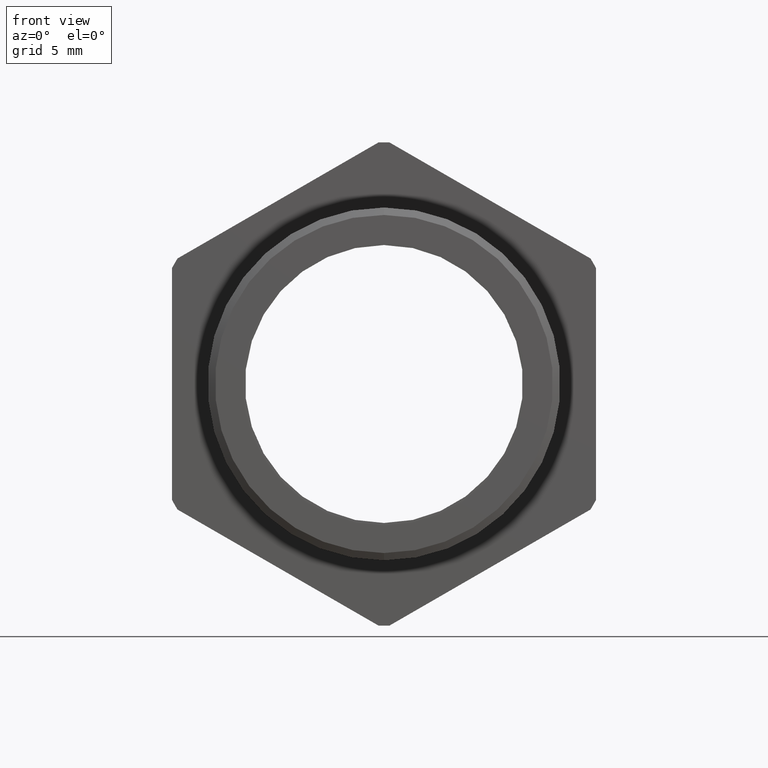
[diagram: clean part render]
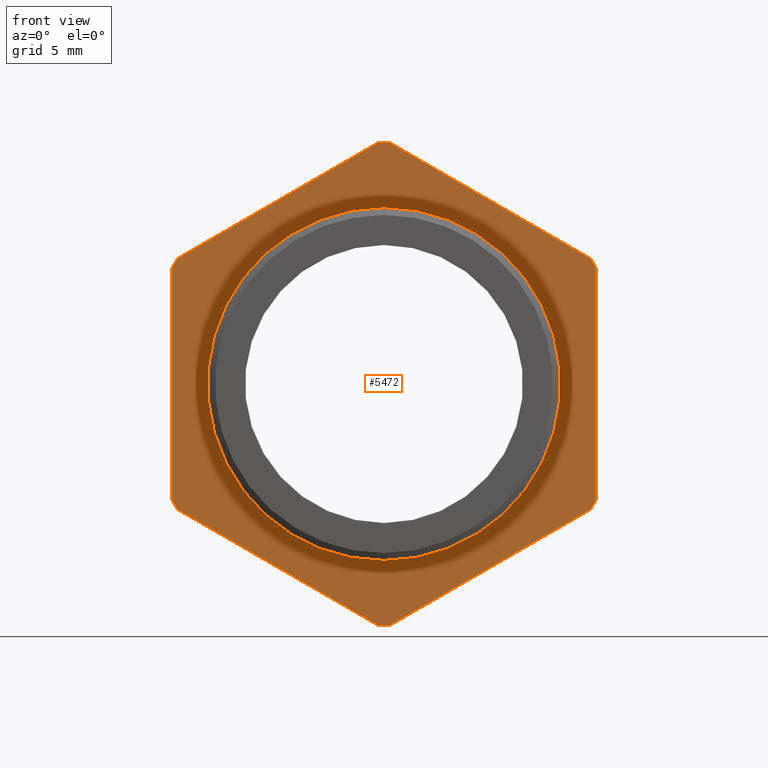
[diagram: same view with one face highlighted and labeled with its STEP entity id]
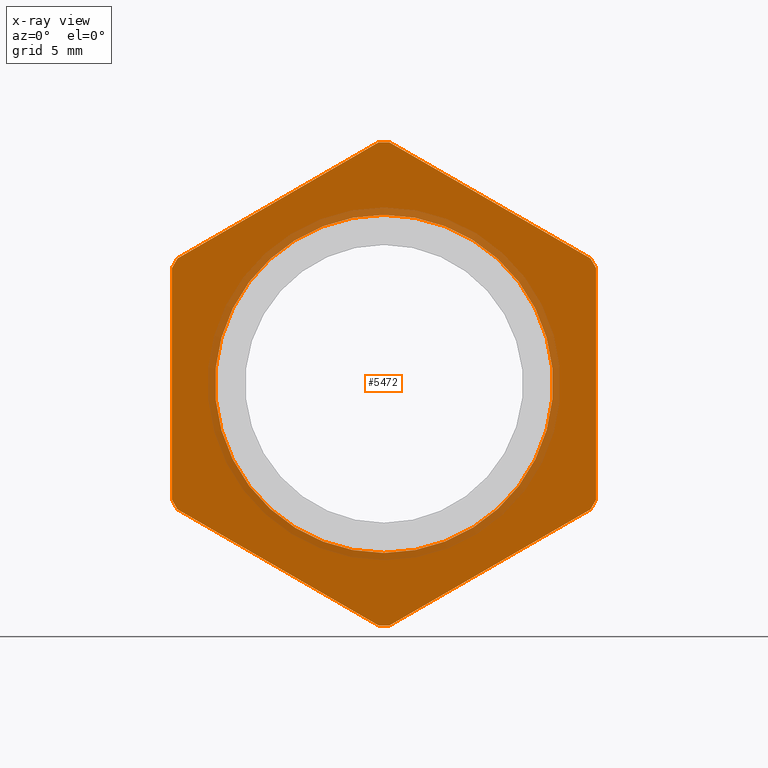
[diagram: x-ray of the same camera — body ghosted, the highlighted face saturated]
A machine part, front view. The second image highlights one B-rep face of the part: STEP entity #5472.
The next image is the same camera in x-ray: the body ghosted, the highlighted face saturated — about 12% of this face is hidden behind the body in this view.
In plain terms, the highlighted planar face has unit normal (0, -1, -0).
Its self-contained STEP definition (entity closure, byte-faithful):
#351 = DIRECTION ( 'NONE',  ( 0.0000000000000000000, 0.0000000000000000000, -1.000000000000000000 ) ) ;
#352 = DIRECTION ( 'NONE',  ( -0.0000000000000000000, -1.000000000000000000, -0.0000000000000000000 ) ) ;
#353 = CARTESIAN_POINT ( 'NONE',  ( 0.0000000000000000000, 0.1475548905829479600, 0.0000000000000000000 ) ) ;
#354 = AXIS2_PLACEMENT_3D ( 'NONE', #353, #352, #351 ) ;
#355 = CIRCLE ( 'NONE', #354, 0.3150000000000000000 ) ;
#387 = DIRECTION ( 'NONE',  ( 0.0000000000000000000, 0.0000000000000000000, -1.000000000000000000 ) ) ;
#388 = DIRECTION ( 'NONE',  ( 0.0000000000000000000, -1.000000000000000000, -0.0000000000000000000 ) ) ;
#389 = AXIS2_PLACEMENT_3D ( 'NONE', #391, #388, #387 ) ;
#391 = CARTESIAN_POINT ( 'NONE',  ( 0.3150000000000000000, 0.1475548905829479600, 0.0000000000000000000 ) ) ;
#392 = PLANE ( 'NONE',  #389 ) ;
#393 = FACE_OUTER_BOUND ( 'NONE', #5468, .T. ) ;
#394 = FACE_BOUND ( 'NONE', #5466, .T. ) ;
#2116 = CARTESIAN_POINT ( 'NONE',  ( 0.0000000000000000000, 0.1475548905829479600, -0.4502999999999999800 ) ) ;
#2158 = CARTESIAN_POINT ( 'NONE',  ( -0.01026000026703716000, 0.1475548905829479600, -0.4501830987437449600 ) ) ;
#2172 = DIRECTION ( 'NONE',  ( 0.0000000000000000000, 0.0000000000000000000, -1.000000000000000000 ) ) ;
#2173 = DIRECTION ( 'NONE',  ( -0.0000000000000000000, -1.000000000000000000, -0.0000000000000000000 ) ) ;
#2174 = CARTESIAN_POINT ( 'NONE',  ( 0.0000000000000000000, 0.1475548905829479600, 0.0000000000000000000 ) ) ;
#2175 = AXIS2_PLACEMENT_3D ( 'NONE', #2174, #2173, #2172 ) ;
#2176 = CIRCLE ( 'NONE', #2175, 0.4502999999999999800 ) ;
#2186 = CIRCLE ( 'NONE', #2252, 0.4502999999999999800 ) ;
#2200 = CARTESIAN_POINT ( 'NONE',  ( 0.3949999999999999100, 0.1475548905829479600, 0.2162061284977834200 ) ) ;
#2211 = CARTESIAN_POINT ( 'NONE',  ( 0.3847399997329628600, 0.1475548905829479600, 0.2339769702459617900 ) ) ;
#2243 = CARTESIAN_POINT ( 'NONE',  ( 0.3847399997329629100, 0.1475548905829479600, -0.2339769702459617300 ) ) ;
#2247 = CARTESIAN_POINT ( 'NONE',  ( 0.3950000000000000200, 0.1475548905829479600, -0.2162061284977832000 ) ) ;
#2249 = DIRECTION ( 'NONE',  ( 0.0000000000000000000, 0.0000000000000000000, -1.000000000000000000 ) ) ;
#2250 = DIRECTION ( 'NONE',  ( -0.0000000000000000000, -1.000000000000000000, -0.0000000000000000000 ) ) ;
#2251 = CARTESIAN_POINT ( 'NONE',  ( 0.0000000000000000000, 0.1475548905829479600, 0.0000000000000000000 ) ) ;
#2252 = AXIS2_PLACEMENT_3D ( 'NONE', #2251, #2250, #2249 ) ;
#2258 = CARTESIAN_POINT ( 'NONE',  ( 0.01026000026703700000, 0.1475548905829479600, -0.4501830987437449600 ) ) ;
#2264 = DIRECTION ( 'NONE',  ( 0.0000000000000000000, 0.0000000000000000000, -1.000000000000000000 ) ) ;
#2265 = DIRECTION ( 'NONE',  ( -0.0000000000000000000, -1.000000000000000000, -0.0000000000000000000 ) ) ;
#2266 = CARTESIAN_POINT ( 'NONE',  ( 0.0000000000000000000, 0.1475548905829479600, 0.0000000000000000000 ) ) ;
#2267 = AXIS2_PLACEMENT_3D ( 'NONE', #2266, #2265, #2264 ) ;
#2272 = CIRCLE ( 'NONE', #2267, 0.4502999999999999800 ) ;
#2275 = DIRECTION ( 'NONE',  ( 0.0000000000000000000, 0.0000000000000000000, -1.000000000000000000 ) ) ;
#2276 = DIRECTION ( 'NONE',  ( -0.0000000000000000000, -1.000000000000000000, -0.0000000000000000000 ) ) ;
#2277 = CARTESIAN_POINT ( 'NONE',  ( 0.0000000000000000000, 0.1475548905829479600, 0.0000000000000000000 ) ) ;
#2278 = AXIS2_PLACEMENT_3D ( 'NONE', #2277, #2276, #2275 ) ;
#2279 = CIRCLE ( 'NONE', #2278, 0.4502999999999999800 ) ;
#2879 = CARTESIAN_POINT ( 'NONE',  ( 0.0000000000000000000, 0.1475548905829479600, 0.0000000000000000000 ) ) ;
#2880 = AXIS2_PLACEMENT_3D ( 'NONE', #2879, #2941, #2940 ) ;
#2881 = CIRCLE ( 'NONE', #2880, 0.3150000000000000000 ) ;
#2883 = CARTESIAN_POINT ( 'NONE',  ( 0.0000000000000000000, 0.1475548905829479600, -0.3150000000000000000 ) ) ;
#2884 = CARTESIAN_POINT ( 'NONE',  ( 3.857637417314162700E-017, 0.1475548905829479600, 0.3150000000000000000 ) ) ;
#2940 = DIRECTION ( 'NONE',  ( 0.0000000000000000000, 0.0000000000000000000, -1.000000000000000000 ) ) ;
#2941 = DIRECTION ( 'NONE',  ( -0.0000000000000000000, -1.000000000000000000, -0.0000000000000000000 ) ) ;
#3582 = DIRECTION ( 'NONE',  ( -0.8660254037844386000, 0.0000000000000000000, 0.5000000000000002200 ) ) ;
#3583 = VECTOR ( 'NONE', #3582, 39.37007874015747400 ) ;
#3584 = CARTESIAN_POINT ( 'NONE',  ( 0.4337500000000000200, 0.1475548905829479600, 0.2056810333988042200 ) ) ;
#3585 = LINE ( 'NONE', #3584, #3583 ) ;
#3701 = DIRECTION ( 'NONE',  ( 0.0000000000000000000, 0.0000000000000000000, -1.000000000000000000 ) ) ;
#3702 = VECTOR ( 'NONE', #3701, 39.37007874015748100 ) ;
#3711 = CARTESIAN_POINT ( 'NONE',  ( -0.3949999999999999600, 0.1475548905829479600, 0.0000000000000000000 ) ) ;
#3712 = LINE ( 'NONE', #3711, #3702 ) ;
#3720 = DIRECTION ( 'NONE',  ( 0.8660254037844386000, 0.0000000000000000000, -0.5000000000000002200 ) ) ;
#3721 = VECTOR ( 'NONE', #3720, 39.37007874015747400 ) ;
#3722 = CARTESIAN_POINT ( 'NONE',  ( 0.03874999999999989600, 0.1475548905829479600, -0.4784790355909022700 ) ) ;
#3723 = LINE ( 'NONE', #3722, #3721 ) ;
#3767 = DIRECTION ( 'NONE',  ( -0.8660254037844386000, 0.0000000000000000000, -0.4999999999999998300 ) ) ;
#3768 = VECTOR ( 'NONE', #3767, 39.37007874015748900 ) ;
#3769 = CARTESIAN_POINT ( 'NONE',  ( 0.03875000000000002700, 0.1475548905829479600, 0.4784790355909024400 ) ) ;
#3772 = LINE ( 'NONE', #3769, #3768 ) ;
#3784 = DIRECTION ( 'NONE',  ( 0.8660254037844386000, 0.0000000000000000000, 0.4999999999999998300 ) ) ;
#3785 = VECTOR ( 'NONE', #3784, 39.37007874015748900 ) ;
#3786 = CARTESIAN_POINT ( 'NONE',  ( 0.4337499999999999700, 0.1475548905829479600, -0.2056810333988042500 ) ) ;
#3795 = LINE ( 'NONE', #3786, #3785 ) ;
#4142 = CARTESIAN_POINT ( 'NONE',  ( -0.3847399997329630200, 0.1475548905829479600, -0.2339769702459614800 ) ) ;
#4155 = CARTESIAN_POINT ( 'NONE',  ( -0.3847399997329628000, 0.1475548905829479600, 0.2339769702459618100 ) ) ;
#4184 = CARTESIAN_POINT ( 'NONE',  ( 0.01026000026703743400, 0.1475548905829479600, 0.4501830987437449600 ) ) ;
#4197 = DIRECTION ( 'NONE',  ( 0.0000000000000000000, 0.0000000000000000000, -1.000000000000000000 ) ) ;
#4198 = DIRECTION ( 'NONE',  ( -0.0000000000000000000, -1.000000000000000000, -0.0000000000000000000 ) ) ;
#4199 = CARTESIAN_POINT ( 'NONE',  ( 0.0000000000000000000, 0.1475548905829479600, 0.0000000000000000000 ) ) ;
#4200 = AXIS2_PLACEMENT_3D ( 'NONE', #4199, #4198, #4197 ) ;
#4201 = CIRCLE ( 'NONE', #4200, 0.4502999999999999800 ) ;
#4218 = CARTESIAN_POINT ( 'NONE',  ( -0.3949999999999999600, 0.1475548905829479600, 0.2162061284977833100 ) ) ;
#4223 = DIRECTION ( 'NONE',  ( 0.0000000000000000000, 0.0000000000000000000, -1.000000000000000000 ) ) ;
#4224 = DIRECTION ( 'NONE',  ( -0.0000000000000000000, -1.000000000000000000, -0.0000000000000000000 ) ) ;
#4225 = CARTESIAN_POINT ( 'NONE',  ( 0.0000000000000000000, 0.1475548905829479600, 0.0000000000000000000 ) ) ;
#4226 = AXIS2_PLACEMENT_3D ( 'NONE', #4225, #4224, #4223 ) ;
#4227 = CIRCLE ( 'NONE', #4226, 0.4502999999999999800 ) ;
#4249 = DIRECTION ( 'NONE',  ( 0.0000000000000000000, 0.0000000000000000000, -1.000000000000000000 ) ) ;
#4250 = DIRECTION ( 'NONE',  ( -0.0000000000000000000, -1.000000000000000000, -0.0000000000000000000 ) ) ;
#4251 = CARTESIAN_POINT ( 'NONE',  ( 0.0000000000000000000, 0.1475548905829479600, 0.0000000000000000000 ) ) ;
#4252 = AXIS2_PLACEMENT_3D ( 'NONE', #4251, #4250, #4249 ) ;
#4253 = CIRCLE ( 'NONE', #4252, 0.4502999999999999800 ) ;
#4258 = CARTESIAN_POINT ( 'NONE',  ( -0.01026000026703719400, 0.1475548905829479600, 0.4501830987437449000 ) ) ;
#4546 = EDGE_CURVE ( 'NONE', #7629, #7617, #6699, .T. ) ;
#5183 = VERTEX_POINT ( 'NONE', #9243 ) ;
#5445 = EDGE_CURVE ( 'NONE', #8048, #8049, #355, .T. ) ;
#5458 = ORIENTED_EDGE ( 'NONE', *, *, #7627, .T. ) ;
#5466 = EDGE_LOOP ( 'NONE', ( #5467, #5469 ) ) ;
#5467 = ORIENTED_EDGE ( 'NONE', *, *, #8050, .F. ) ;
#5468 = EDGE_LOOP ( 'NONE', ( #5458, #5482, #5481, #5485, #5486, #5489, #5484, #5483, #5480, #5488, #5500, #5501, #5503 ) ) ;
#5469 = ORIENTED_EDGE ( 'NONE', *, *, #5445, .F. ) ;
#5472 = ADVANCED_FACE ( 'NONE', ( #394, #393 ), #392, .T. ) ;
#5480 = ORIENTED_EDGE ( 'NONE', *, *, #8741, .T. ) ;
#5481 = ORIENTED_EDGE ( 'NONE', *, *, #7644, .T. ) ;
#5482 = ORIENTED_EDGE ( 'NONE', *, *, #4546, .T. ) ;
#5483 = ORIENTED_EDGE ( 'NONE', *, *, #8498, .T. ) ;
#5484 = ORIENTED_EDGE ( 'NONE', *, *, #8759, .T. ) ;
#5485 = ORIENTED_EDGE ( 'NONE', *, *, #8438, .T. ) ;
#5486 = ORIENTED_EDGE ( 'NONE', *, *, #8773, .T. ) ;
#5488 = ORIENTED_EDGE ( 'NONE', *, *, #8520, .T. ) ;
#5489 = ORIENTED_EDGE ( 'NONE', *, *, #8536, .T. ) ;
#5500 = ORIENTED_EDGE ( 'NONE', *, *, #7588, .T. ) ;
#5501 = ORIENTED_EDGE ( 'NONE', *, *, #7646, .T. ) ;
#5503 = ORIENTED_EDGE ( 'NONE', *, *, #8529, .T. ) ;
#6696 = DIRECTION ( 'NONE',  ( -2.994746533912406200E-016, 0.0000000000000000000, 1.000000000000000000 ) ) ;
#6697 = VECTOR ( 'NONE', #6696, 39.37007874015748100 ) ;
#6698 = CARTESIAN_POINT ( 'NONE',  ( 0.3949999999999999600, 0.1475548905829479600, 2.395797227129924000E-017 ) ) ;
#6699 = LINE ( 'NONE', #6698, #6697 ) ;
#7556 = VERTEX_POINT ( 'NONE', #2116 ) ;
#7588 = EDGE_CURVE ( 'NONE', #7602, #7556, #2176, .T. ) ;
#7602 = VERTEX_POINT ( 'NONE', #2158 ) ;
#7612 = VERTEX_POINT ( 'NONE', #2211 ) ;
#7617 = VERTEX_POINT ( 'NONE', #2200 ) ;
#7627 = EDGE_CURVE ( 'NONE', #7632, #7629, #2186, .T. ) ;
#7629 = VERTEX_POINT ( 'NONE', #2247 ) ;
#7632 = VERTEX_POINT ( 'NONE', #2243 ) ;
#7644 = EDGE_CURVE ( 'NONE', #7617, #7612, #2279, .T. ) ;
#7646 = EDGE_CURVE ( 'NONE', #7556, #7651, #2272, .T. ) ;
#7651 = VERTEX_POINT ( 'NONE', #2258 ) ;
#8048 = VERTEX_POINT ( 'NONE', #2884 ) ;
#8049 = VERTEX_POINT ( 'NONE', #2883 ) ;
#8050 = EDGE_CURVE ( 'NONE', #8049, #8048, #2881, .T. ) ;
#8438 = EDGE_CURVE ( 'NONE', #7612, #8749, #3585, .T. ) ;
#8498 = EDGE_CURVE ( 'NONE', #8762, #5183, #3712, .T. ) ;
#8520 = EDGE_CURVE ( 'NONE', #8740, #7602, #3723, .T. ) ;
#8529 = EDGE_CURVE ( 'NONE', #7651, #7632, #3795, .T. ) ;
#8536 = EDGE_CURVE ( 'NONE', #8771, #8729, #3772, .T. ) ;
#8729 = VERTEX_POINT ( 'NONE', #4155 ) ;
#8740 = VERTEX_POINT ( 'NONE', #4142 ) ;
#8741 = EDGE_CURVE ( 'NONE', #5183, #8740, #4201, .T. ) ;
#8749 = VERTEX_POINT ( 'NONE', #4184 ) ;
#8759 = EDGE_CURVE ( 'NONE', #8729, #8762, #4227, .T. ) ;
#8762 = VERTEX_POINT ( 'NONE', #4218 ) ;
#8771 = VERTEX_POINT ( 'NONE', #4258 ) ;
#8773 = EDGE_CURVE ( 'NONE', #8749, #8771, #4253, .T. ) ;
#9243 = CARTESIAN_POINT ( 'NONE',  ( -0.3949999999999999600, 0.1475548905829479600, -0.2162061284977833100 ) ) ;